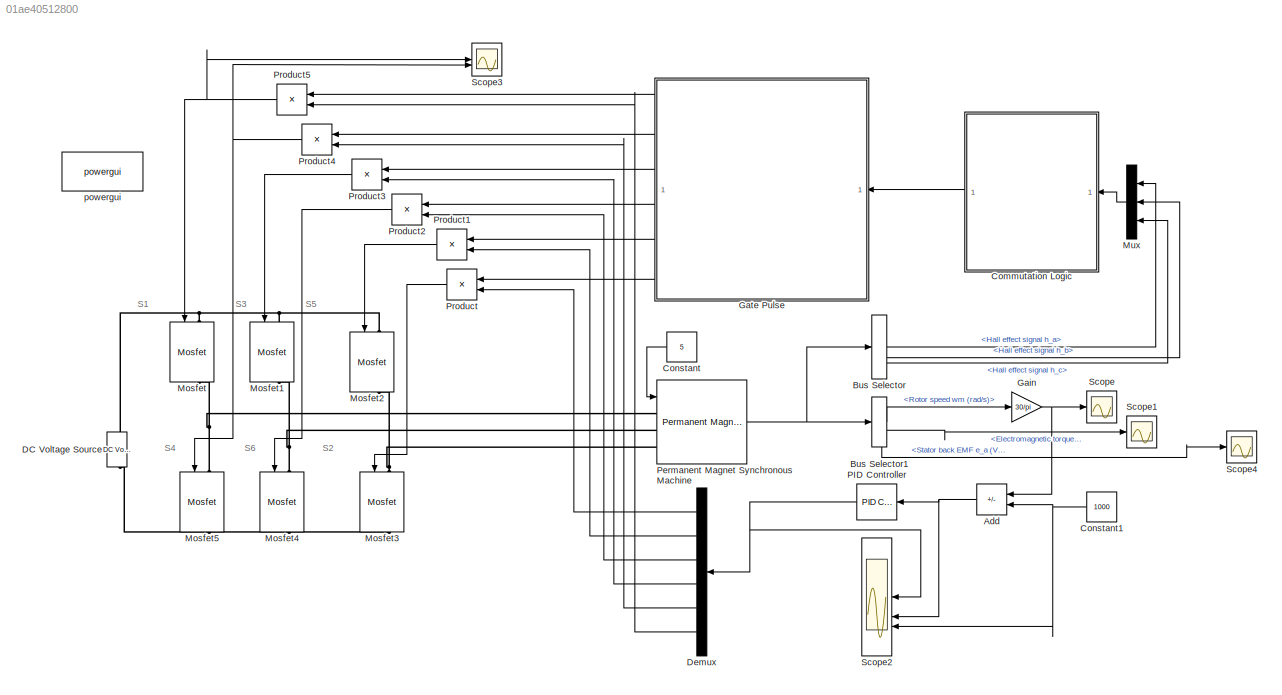
MODEL slx_01ae40512800
KIND model
CONFIG AbsTol = auto
CONFIG EnableMultiTasking = off
CONFIG FixedStep = auto
CONFIG MaxStep = auto
CONFIG MinStep = auto
CONFIG RelTol = 1e-3
CONFIG SampleTimeConstraint = Unconstrained
CONFIG SolverName = ode3
CONFIG StartTime = 0.0
CONFIG StopTime = 1
BLOCK [Sum] Add
  IconShape = rectangular
  Inputs = -+
  NameLocation = top
BLOCK [BusSelector] Bus Selector
  OutputSignals = Hall effect signal h_a,Hall effect signal h_b,Hall effect signal h_c
BLOCK [BusSelector] Bus Selector1
  OutputSignals = Rotor speed wm (rad/s),Electromagnetic torque Te (N*m),Stator back EMF e_a (V)
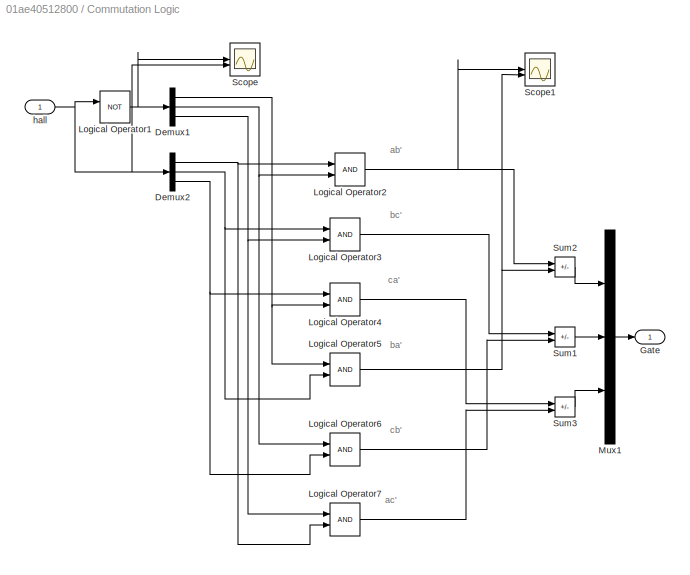
BLOCK [SubSystem] Commutation Logic
BLOCK [Demux] Commutation Logic/Demux1
  Outputs = 3
BLOCK [Demux] Commutation Logic/Demux2
  Outputs = 3
BLOCK [Outport] Commutation Logic/Gate
  VectorParamsAs1DForOutWhenUnconnected = off
BLOCK [Logic] Commutation Logic/Logical Operator1
  AllPortsSameDT = off
  Operator = NOT
  OutDataTypeStr = boolean
BLOCK [Logic] Commutation Logic/Logical Operator2
  AllPortsSameDT = off
  OutDataTypeStr = boolean
BLOCK [Logic] Commutation Logic/Logical Operator3
  AllPortsSameDT = off
  OutDataTypeStr = boolean
BLOCK [Logic] Commutation Logic/Logical Operator4
  AllPortsSameDT = off
  OutDataTypeStr = boolean
BLOCK [Logic] Commutation Logic/Logical Operator5
  AllPortsSameDT = off
  OutDataTypeStr = boolean
BLOCK [Logic] Commutation Logic/Logical Operator6
  AllPortsSameDT = off
  OutDataTypeStr = boolean
BLOCK [Logic] Commutation Logic/Logical Operator7
  AllPortsSameDT = off
  OutDataTypeStr = boolean
BLOCK [Mux] Commutation Logic/Mux1
  DisplayOption = bar
  Inputs = 3
BLOCK [Scope] Commutation Logic/Scope
  Floating = off
  NumInputPorts = 2
  ScopeSpecificationString = Simulink.scopes.TimeScopeBlockCfg('CurrentConfiguration', extmgr.ConfigurationSet(extmgr.Configuration('Core','General UI',true),extmgr.Configuration('Core','Source UI',true),extmgr.Configuration('Sources','WiredSimulink',true,'DataLoggingVariableName','ScopeData2'),extmgr.Configuration('Visuals','Time Domain',true,'SerializedDisplays',{struct('MinYLimReal','-0.125','MaxYLimReal','1.125','YLabelRe...<+2127ch>
BLOCK [Scope] Commutation Logic/Scope1
  Floating = off
  NumInputPorts = 2
  ScopeSpecificationString = Simulink.scopes.TimeScopeBlockCfg('CurrentConfiguration', extmgr.ConfigurationSet(extmgr.Configuration('Core','General UI',true),extmgr.Configuration('Core','Source UI',true),extmgr.Configuration('Sources','WiredSimulink',true,'DataLoggingVariableName','ScopeData3'),extmgr.Configuration('Visuals','Time Domain',true,'SerializedDisplays',{struct('MinYLimReal','-0.125','MaxYLimReal','1.125','YLabelRe...<+2016ch>
BLOCK [Sum] Commutation Logic/Sum1
  IconShape = rectangular
  Inputs = +-
  OutDataTypeStr = double
BLOCK [Sum] Commutation Logic/Sum2
  IconShape = rectangular
  Inputs = +-
  OutDataTypeStr = double
BLOCK [Sum] Commutation Logic/Sum3
  IconShape = rectangular
  Inputs = +-
  OutDataTypeStr = double
BLOCK [Inport] Commutation Logic/hall 
BLOCK [Constant] Constant
  NameLocation = top
  Value = 5
BLOCK [Constant] Constant1
  NameLocation = top
  Value = 1000
BLOCK [Reference] DC Voltage Source  REF=spsDCVoltageSourceLib/DC Voltage Source
  LibrarySourceBlock = sps_lib/Sources/DC Voltage Source
  SourceBlock = spsDCVoltageSourceLib/DC Voltage Source
  SourceType = DC Voltage Source
BLOCK [Demux] Demux
  NameLocation = top
  Outputs = 6
BLOCK [Gain] Gain
  Gain = 30/pi
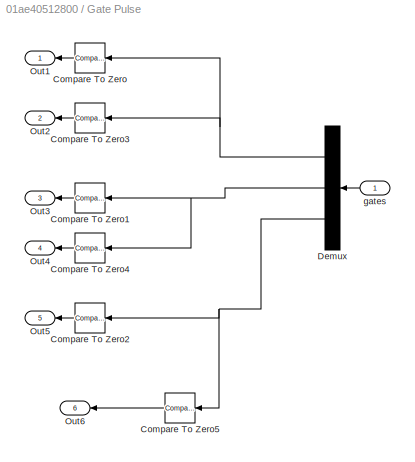
BLOCK [SubSystem] Gate Pulse
  NameLocation = top
BLOCK [Reference] Gate Pulse/Compare To Zero  REF=simulink/Logic and Bit
Operations/Compare
To Zero
  NameLocation = top
  SourceBlock = simulink/Logic and Bit\nOperations/Compare\nTo Zero
  SourceType = Compare To Zero
BLOCK [Reference] Gate Pulse/Compare To Zero1  REF=simulink/Logic and Bit
Operations/Compare
To Zero
  NameLocation = top
  SourceBlock = simulink/Logic and Bit\nOperations/Compare\nTo Zero
  SourceType = Compare To Zero
BLOCK [Reference] Gate Pulse/Compare To Zero2  REF=simulink/Logic and Bit
Operations/Compare
To Zero
  NameLocation = top
  SourceBlock = simulink/Logic and Bit\nOperations/Compare\nTo Zero
  SourceType = Compare To Zero
BLOCK [Reference] Gate Pulse/Compare To Zero3  REF=simulink/Logic and Bit
Operations/Compare
To Zero
  NameLocation = top
  SourceBlock = simulink/Logic and Bit\nOperations/Compare\nTo Zero
  SourceType = Compare To Zero
BLOCK [Reference] Gate Pulse/Compare To Zero4  REF=simulink/Logic and Bit
Operations/Compare
To Zero
  NameLocation = top
  SourceBlock = simulink/Logic and Bit\nOperations/Compare\nTo Zero
  SourceType = Compare To Zero
BLOCK [Reference] Gate Pulse/Compare To Zero5  REF=simulink/Logic and Bit
Operations/Compare
To Zero
  NameLocation = top
  SourceBlock = simulink/Logic and Bit\nOperations/Compare\nTo Zero
  SourceType = Compare To Zero
BLOCK [Demux] Gate Pulse/Demux
  NameLocation = top
  Outputs = 3
BLOCK [Outport] Gate Pulse/Out1
  VectorParamsAs1DForOutWhenUnconnected = off
BLOCK [Outport] Gate Pulse/Out2
  Port = 2
  VectorParamsAs1DForOutWhenUnconnected = off
BLOCK [Outport] Gate Pulse/Out3
  Port = 3
  VectorParamsAs1DForOutWhenUnconnected = off
BLOCK [Outport] Gate Pulse/Out4
  Port = 4
  VectorParamsAs1DForOutWhenUnconnected = off
BLOCK [Outport] Gate Pulse/Out5
  Port = 5
  VectorParamsAs1DForOutWhenUnconnected = off
BLOCK [Outport] Gate Pulse/Out6
  Port = 6
  VectorParamsAs1DForOutWhenUnconnected = off
BLOCK [Inport] Gate Pulse/gates
BLOCK [Reference] Mosfet  REF=spsMosfetLib/Mosfet
  NameLocation = left
  SourceBlock = spsMosfetLib/Mosfet
  SourceType = Mosfet
BLOCK [Reference] Mosfet1  REF=spsMosfetLib/Mosfet
  NameLocation = left
  SourceBlock = spsMosfetLib/Mosfet
  SourceType = Mosfet
BLOCK [Reference] Mosfet2  REF=spsMosfetLib/Mosfet
  NameLocation = left
  SourceBlock = spsMosfetLib/Mosfet
  SourceType = Mosfet
BLOCK [Reference] Mosfet3  REF=spsMosfetLib/Mosfet
  NameLocation = left
  SourceBlock = spsMosfetLib/Mosfet
  SourceType = Mosfet
BLOCK [Reference] Mosfet4  REF=spsMosfetLib/Mosfet
  NameLocation = left
  SourceBlock = spsMosfetLib/Mosfet
  SourceType = Mosfet
BLOCK [Reference] Mosfet5  REF=spsMosfetLib/Mosfet
  NameLocation = left
  SourceBlock = spsMosfetLib/Mosfet
  SourceType = Mosfet
BLOCK [Mux] Mux
  DisplayOption = bar
  Inputs = 3
  NameLocation = top
BLOCK [Reference] PID Controller  REF=slpidlib/PID Controller
  NameLocation = top
  SourceBlock = slpidlib/PID Controller
  SourceType = PID 1dof
BLOCK [Reference] Permanent Magnet Synchronous Machine  REF=spsPermanentMagnetSynchronousMachineLib/Permanent Magnet
Synchronous Machine
  SourceBlock = spsPermanentMagnetSynchronousMachineLib/Permanent Magnet\nSynchronous Machine
  SourceType = Permanent Magnet Synchronous Machine
BLOCK [Product] Product
  NameLocation = top
BLOCK [Product] Product1
  NameLocation = top
BLOCK [Product] Product2
  NameLocation = top
BLOCK [Product] Product3
  NameLocation = top
BLOCK [Product] Product4
  NameLocation = top
BLOCK [Product] Product5
  NameLocation = top
BLOCK [Scope] Scope
  Floating = off
  NumInputPorts = 1
  ScopeSpecificationString = Simulink.scopes.TimeScopeBlockCfg('CurrentConfiguration', extmgr.ConfigurationSet(extmgr.Configuration('Core','General UI',true,'FigureColor',[1 1 1]),extmgr.Configuration('Core','Source UI',true),extmgr.Configuration('Sources','WiredSimulink',true),extmgr.Configuration('Visuals','Time Domain',true,'SerializedDisplays',{struct('MinYLimReal','-212.1729','MaxYLimReal','1909.07298','YLabelReal','','M...<+2211ch>
BLOCK [Scope] Scope1
  Floating = off
  NumInputPorts = 1
  ScopeSpecificationString = Simulink.scopes.TimeScopeBlockCfg('CurrentConfiguration', extmgr.ConfigurationSet(extmgr.Configuration('Core','General UI',true,'FigureColor',[1 1 1]),extmgr.Configuration('Core','Source UI',true),extmgr.Configuration('Sources','WiredSimulink',true,'DataLoggingVariableName','ScopeData1'),extmgr.Configuration('Visuals','Time Domain',true,'SerializedDisplays',{struct('MinYLimReal','-13.38','MaxYLimR...<+1616ch>
BLOCK [Scope] Scope2
  Floating = off
  NameLocation = top
  NumInputPorts = 3
  ScopeSpecificationString = Simulink.scopes.TimeScopeBlockCfg('CurrentConfiguration', extmgr.ConfigurationSet(extmgr.Configuration('Core','General UI',true,'FigureColor',[1 1 1]),extmgr.Configuration('Core','Source UI',true),extmgr.Configuration('Sources','WiredSimulink',true,'DataLoggingVariableName','ScopeData1'),extmgr.Configuration('Visuals','Time Domain',true,'SerializedDisplays',{struct('MinYLimReal','-177.7872','MaxYL...<+3067ch>
BLOCK [Scope] Scope3
  Floating = off
  NumInputPorts = 2
  ScopeSpecificationString = Simulink.scopes.TimeScopeBlockCfg('CurrentConfiguration', extmgr.ConfigurationSet(extmgr.Configuration('Core','General UI',true,'FigureColor',[1 1 1]),extmgr.Configuration('Core','Source UI',true),extmgr.Configuration('Sources','WiredSimulink',true,'DataLoggingVariableName','ScopeData4'),extmgr.Configuration('Visuals','Time Domain',true,'SerializedDisplays',{struct('MinYLimReal','-925.9953','MaxYL...<+2262ch>
BLOCK [Scope] Scope4
  Floating = off
  NumInputPorts = 1
  ScopeSpecificationString = Simulink.scopes.TimeScopeBlockCfg('CurrentConfiguration', extmgr.ConfigurationSet(extmgr.Configuration('Core','General UI',true),extmgr.Configuration('Core','Source UI',true),extmgr.Configuration('Sources','WiredSimulink',true,'DataLoggingVariableName','ScopeData1'),extmgr.Configuration('Visuals','Time Domain',true,'SerializedDisplays',{struct('MinYLimReal','-67.92411','MaxYLimReal','68.23957','YL...<+1461ch>
BLOCK [Reference] powergui  REF=spspowerguiLib/powergui
  Priority = 1
  SourceBlock = spspowerguiLib/powergui
  SourceType = PSB option menu block
ANNOTATION (root): S1
ANNOTATION (root): S2
ANNOTATION (root): S3
ANNOTATION (root): S4
ANNOTATION (root): S5
ANNOTATION (root): S6
ANNOTATION Commutation Logic: ab'
ANNOTATION Commutation Logic: ac'
ANNOTATION Commutation Logic: ba'
ANNOTATION Commutation Logic: bc'
ANNOTATION Commutation Logic: ca'
ANNOTATION Commutation Logic: cb'
NET Add:1 -> PID Controller:1, Scope2:2
LINE Bus Selector1:1 -> Gain:1
LINE Bus Selector1:2 -> Scope1:1
LINE Bus Selector1:3 -> Scope4:1
LINE Bus Selector:1 -> Mux:1
LINE Bus Selector:2 -> Mux:2
LINE Bus Selector:3 -> Mux:3
NET Commutation Logic/Demux1:1 -> Commutation Logic/Logical Operator4:2, Commutation Logic/Logical Operator5:1
NET Commutation Logic/Demux1:2 -> Commutation Logic/Logical Operator2:2, Commutation Logic/Logical Operator6:1
NET Commutation Logic/Demux1:3 -> Commutation Logic/Logical Operator3:2, Commutation Logic/Logical Operator7:1
NET Commutation Logic/Demux2:1 -> Commutation Logic/Logical Operator2:1, Commutation Logic/Logical Operator7:2
NET Commutation Logic/Demux2:2 -> Commutation Logic/Logical Operator3:1, Commutation Logic/Logical Operator5:2
NET Commutation Logic/Demux2:3 -> Commutation Logic/Logical Operator4:1, Commutation Logic/Logical Operator6:2
NET Commutation Logic/Logical Operator1:1 -> Commutation Logic/Demux1:1, Commutation Logic/Scope:1
NET Commutation Logic/Logical Operator2:1 -> Commutation Logic/Scope1:1, Commutation Logic/Sum2:1
LINE Commutation Logic/Logical Operator3:1 -> Commutation Logic/Sum1:1
LINE Commutation Logic/Logical Operator4:1 -> Commutation Logic/Sum3:1
NET Commutation Logic/Logical Operator5:1 -> Commutation Logic/Scope1:2, Commutation Logic/Sum2:2
LINE Commutation Logic/Logical Operator6:1 -> Commutation Logic/Sum1:2
LINE Commutation Logic/Logical Operator7:1 -> Commutation Logic/Sum3:2
LINE Commutation Logic/Mux1:1 -> Commutation Logic/Gate:1
LINE Commutation Logic/Sum1:1 -> Commutation Logic/Mux1:2
LINE Commutation Logic/Sum2:1 -> Commutation Logic/Mux1:1
LINE Commutation Logic/Sum3:1 -> Commutation Logic/Mux1:3
NET Commutation Logic/hall :1 -> Commutation Logic/Demux2:1, Commutation Logic/Logical Operator1:1, Commutation Logic/Scope:2
LINE Commutation Logic:1 -> Gate Pulse:1
NET Constant1:1 -> Add:2, Scope2:3
LINE Constant:1 -> Permanent Magnet Synchronous Machine:1
LINE Demux:1 -> Product:2
LINE Demux:2 -> Product1:2
LINE Demux:3 -> Product2:2
LINE Demux:4 -> Product3:2
LINE Demux:5 -> Product4:2
LINE Demux:6 -> Product5:2
NET Gain:1 -> Add:1, Scope:1
LINE Gate Pulse/Compare To Zero1:1 -> Gate Pulse/Out3:1
LINE Gate Pulse/Compare To Zero2:1 -> Gate Pulse/Out5:1
LINE Gate Pulse/Compare To Zero3:1 -> Gate Pulse/Out2:1
LINE Gate Pulse/Compare To Zero4:1 -> Gate Pulse/Out4:1
LINE Gate Pulse/Compare To Zero5:1 -> Gate Pulse/Out6:1
LINE Gate Pulse/Compare To Zero:1 -> Gate Pulse/Out1:1
NET Gate Pulse/Demux:1 -> Gate Pulse/Compare To Zero3:1, Gate Pulse/Compare To Zero:1
NET Gate Pulse/Demux:2 -> Gate Pulse/Compare To Zero1:1, Gate Pulse/Compare To Zero4:1
NET Gate Pulse/Demux:3 -> Gate Pulse/Compare To Zero2:1, Gate Pulse/Compare To Zero5:1
LINE Gate Pulse/gates:1 -> Gate Pulse/Demux:1
LINE Gate Pulse:1 -> Product5:1
LINE Gate Pulse:2 -> Product4:1
LINE Gate Pulse:3 -> Product3:1
LINE Gate Pulse:4 -> Product2:1
LINE Gate Pulse:5 -> Product1:1
LINE Gate Pulse:6 -> Product:1
LINE Mux:1 -> Commutation Logic:1
NET PID Controller:1 -> Demux:1, Scope2:1
NET Permanent Magnet Synchronous Machine:1 -> Bus Selector1:1, Bus Selector:1
LINE Product1:1 -> Mosfet2:1
LINE Product2:1 -> Mosfet4:1
LINE Product3:1 -> Mosfet1:1
NET Product4:1 -> Mosfet5:1, Scope3:2
NET Product5:1 -> Mosfet:1, Scope3:1
LINE Product:1 -> Mosfet3:1
PNET net1: DC Voltage Source:LConn1 -- Mosfet3:RConn1 -- Mosfet4:RConn1 -- Mosfet5:RConn1
PNET net2: DC Voltage Source:RConn1 -- Mosfet1:LConn1 -- Mosfet2:LConn1 -- Mosfet:LConn1
PNET net3: Mosfet1:RConn1 -- Mosfet4:LConn1 -- Permanent Magnet Synchronous Machine:LConn2
PNET net4: Mosfet2:RConn1 -- Mosfet3:LConn1 -- Permanent Magnet Synchronous Machine:LConn3
PNET net5: Mosfet5:LConn1 -- Mosfet:RConn1 -- Permanent Magnet Synchronous Machine:LConn1
note: NET lines group one-source signal fan-out (src -> all destinations, sorted); 1:1 wires keep LINE; PNET lines group multi-terminal physical nets as a canonical sorted terminal list (undirected conserving connections); 2-terminal nets keep the pairwise PLINE form
